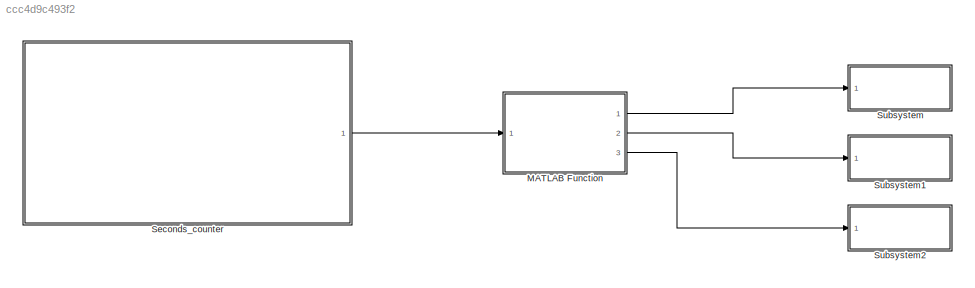
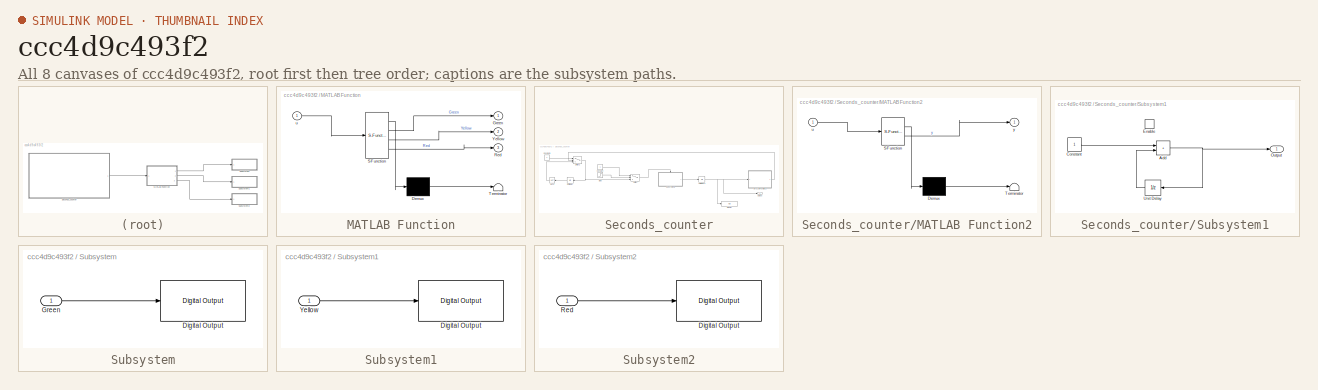
[diagram: thumbnail index - all 8 canvases of the model, root first then tree order]
MODEL slx_ccc4d9c493f2
KIND model
CONFIG AbsTol = auto
CONFIG EnableMultiTasking = on
CONFIG FixedStep = 1e-3
CONFIG MaxStep = auto
CONFIG MinStep = auto
CONFIG RelTol = 1e-3
CONFIG SampleTimeConstraint = Unconstrained
CONFIG SolverName = FixedStepDiscrete
CONFIG StartTime = 0.0
CONFIG StopTime = 50
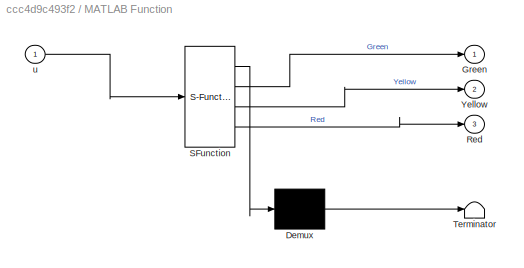
BLOCK [SubSystem] MATLAB Function
  ErrorFcn = Stateflow.Translate.translate
  PermitHierarchicalResolution = ExplicitOnly
  Ports = [1, 3]
  SFBlockType = MATLAB Function
  TreatAsAtomicUnit = on
BLOCK [Demux] MATLAB Function/ Demux 
  Outputs = 1
  Ports = [1, 1]
BLOCK [S-Function] MATLAB Function/ SFunction 
  EnableBusSupport = on
  FunctionName = sf_sfun
  PortCounts = [1 4]
  Ports = [1, 4]
  SFcnIsStateOwnerBlock = off
  SFunctionDeploymentMode = off
  Tag = Stateflow S-Function 2
BLOCK [Terminator] MATLAB Function/ Terminator 
BLOCK [Outport] MATLAB Function/Green
BLOCK [Outport] MATLAB Function/Red
  Port = 3
BLOCK [Outport] MATLAB Function/Yellow
  Port = 2
BLOCK [Inport] MATLAB Function/u
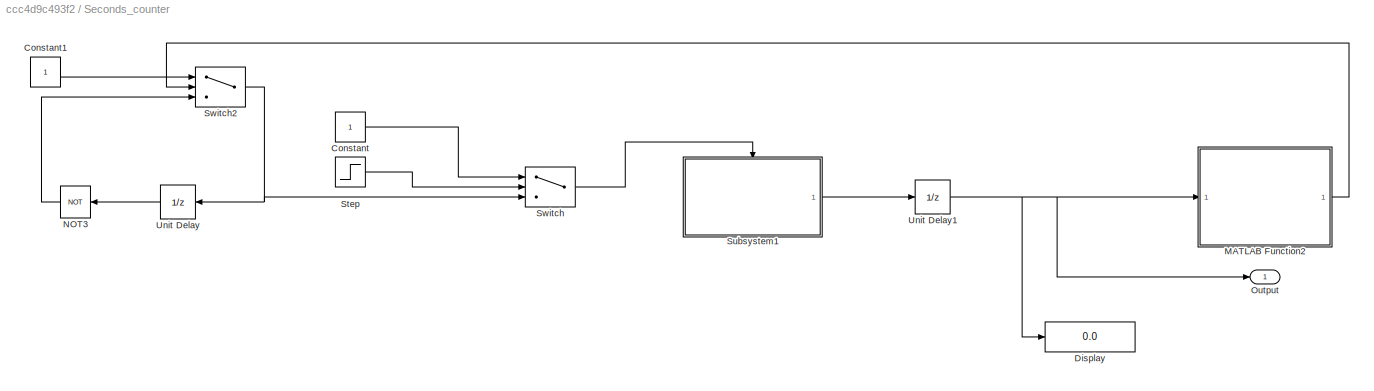
BLOCK [SubSystem] Seconds_counter
  Ports = [0, 1]
BLOCK [Constant] Seconds_counter/Constant
BLOCK [Constant] Seconds_counter/Constant1
BLOCK [Display] Seconds_counter/Display
  Decimation = 1
  Ports = [1]
BLOCK [SubSystem] Seconds_counter/MATLAB Function2
  ErrorFcn = Stateflow.Translate.translate
  PermitHierarchicalResolution = ExplicitOnly
  Ports = [1, 1]
  SFBlockType = MATLAB Function
  TreatAsAtomicUnit = on
BLOCK [Demux] Seconds_counter/MATLAB Function2/ Demux 
  Outputs = 1
  Ports = [1, 1]
BLOCK [S-Function] Seconds_counter/MATLAB Function2/ SFunction 
  EnableBusSupport = on
  FunctionName = sf_sfun
  PortCounts = [1 2]
  Ports = [1, 2]
  SFcnIsStateOwnerBlock = off
  SFunctionDeploymentMode = off
  Tag = Stateflow S-Function 3
BLOCK [Terminator] Seconds_counter/MATLAB Function2/ Terminator 
BLOCK [Inport] Seconds_counter/MATLAB Function2/u
BLOCK [Outport] Seconds_counter/MATLAB Function2/y
BLOCK [Logic] Seconds_counter/NOT3
  AllPortsSameDT = off
  IconShape = distinctive
  NameLocation = top
  Operator = NOT
  OutDataTypeStr = boolean
  Ports = [1, 1]
BLOCK [Outport] Seconds_counter/Output
BLOCK [Step] Seconds_counter/Step
  After = 0
  Before = 1
  SampleTime = 1
  Time = 2
BLOCK [SubSystem] Seconds_counter/Subsystem1
  Ports = [0, 1, 1]
BLOCK [Sum] Seconds_counter/Subsystem1/Add
  IconShape = rectangular
  Ports = [2, 1]
BLOCK [Constant] Seconds_counter/Subsystem1/Constant
BLOCK [EnablePort] Seconds_counter/Subsystem1/Enable
  Ports = []
  StatesWhenEnabling = reset
BLOCK [Outport] Seconds_counter/Subsystem1/Output
BLOCK [UnitDelay] Seconds_counter/Subsystem1/Unit Delay
  HasFrameUpgradeWarning = on
  InitialCondition = 1
BLOCK [Switch] Seconds_counter/Switch
  Criteria = u2 > Threshold
  InputSameDT = off
  SaturateOnIntegerOverflow = off
BLOCK [Switch] Seconds_counter/Switch2
  Criteria = u2 > Threshold
  InputSameDT = off
  SaturateOnIntegerOverflow = off
BLOCK [UnitDelay] Seconds_counter/Unit Delay
  HasFrameUpgradeWarning = on
  SampleTime = -1
BLOCK [UnitDelay] Seconds_counter/Unit Delay1
  HasFrameUpgradeWarning = on
  InitialCondition = 1
  SampleTime = -1
BLOCK [SubSystem] Subsystem
  Ports = [1]
BLOCK [Reference] Subsystem/Digital Output  REF=arduinolib/Digital Output
  Ports = [1]
  SourceBlock = arduinolib/Digital Output
  SourceType = Arduino Digital Output
BLOCK [Inport] Subsystem/Green
BLOCK [SubSystem] Subsystem1
  Ports = [1]
BLOCK [Reference] Subsystem1/Digital Output  REF=arduinolib/Digital Output
  Ports = [1]
  SourceBlock = arduinolib/Digital Output
  SourceType = Arduino Digital Output
BLOCK [Inport] Subsystem1/Yellow
BLOCK [SubSystem] Subsystem2
  Ports = [1]
BLOCK [Reference] Subsystem2/Digital Output  REF=arduinolib/Digital Output
  Ports = [1]
  SourceBlock = arduinolib/Digital Output
  SourceType = Arduino Digital Output
BLOCK [Inport] Subsystem2/Red
LINE MATLAB Function:1 -> Subsystem:1
LINE MATLAB Function:2 -> Subsystem1:1
LINE MATLAB Function:3 -> Subsystem2:1
LINE Seconds_counter/Constant1:1 -> Seconds_counter/Switch2:1
LINE Seconds_counter/Constant:1 -> Seconds_counter/Switch:1
LINE Seconds_counter/MATLAB Function2:1 -> Seconds_counter/Switch2:2
LINE Seconds_counter/NOT3:1 -> Seconds_counter/Switch2:3
LINE Seconds_counter/Step:1 -> Seconds_counter/Switch:2
NET Seconds_counter/Subsystem1/Add:1 -> Seconds_counter/Subsystem1/Output:1, Seconds_counter/Subsystem1/Unit Delay:1
LINE Seconds_counter/Subsystem1/Constant:1 -> Seconds_counter/Subsystem1/Add:1
LINE Seconds_counter/Subsystem1/Unit Delay:1 -> Seconds_counter/Subsystem1/Add:2
LINE Seconds_counter/Subsystem1:1 -> Seconds_counter/Unit Delay1:1
NET Seconds_counter/Switch2:1 -> Seconds_counter/Switch:3, Seconds_counter/Unit Delay:1
LINE Seconds_counter/Switch:1 -> Seconds_counter/Subsystem1:enable
NET Seconds_counter/Unit Delay1:1 -> Seconds_counter/Display:1, Seconds_counter/MATLAB Function2:1, Seconds_counter/Output:1
LINE Seconds_counter/Unit Delay:1 -> Seconds_counter/NOT3:1
LINE Seconds_counter:1 -> MATLAB Function:1
LINE Subsystem/Green:1 -> Subsystem/Digital Output:1
LINE Subsystem1/Yellow:1 -> Subsystem1/Digital Output:1
LINE Subsystem2/Red:1 -> Subsystem2/Digital Output:1
note: NET lines group one-source signal fan-out (src -> all destinations, sorted); 1:1 wires keep LINE
CHART Seconds_counter/MATLAB Function2 states=1 transitions=1
  STATE_LABEL 'eML_blk_kernel()'
  STATE_LABEL 'SCRIPT:\nfunction y = Seconds_Detector(u)\ny=1;\nif (u == 29)\n    y=0;\nend'
CHART MATLAB Function states=1 transitions=1
  STATE_LABEL 'eML_blk_kernel()'
  STATE_LABEL 'SCRIPT:\nfunction [Green , Yellow , Red ] = fcn(u)\nGreen = 0 ;\nYellow = 0 ; \nRed  = 0;\n\nif ( u >=0 && u <=15 )\n    Green = 1;\nelseif (u >=15 && u <=20)\n    Yellow = 1 ;\nelseif (u >=20 && u <=30)\n    Red  = 1;\nend\n\n'
CHART  states=0 transitions=0
CHART  states=0 transitions=0
